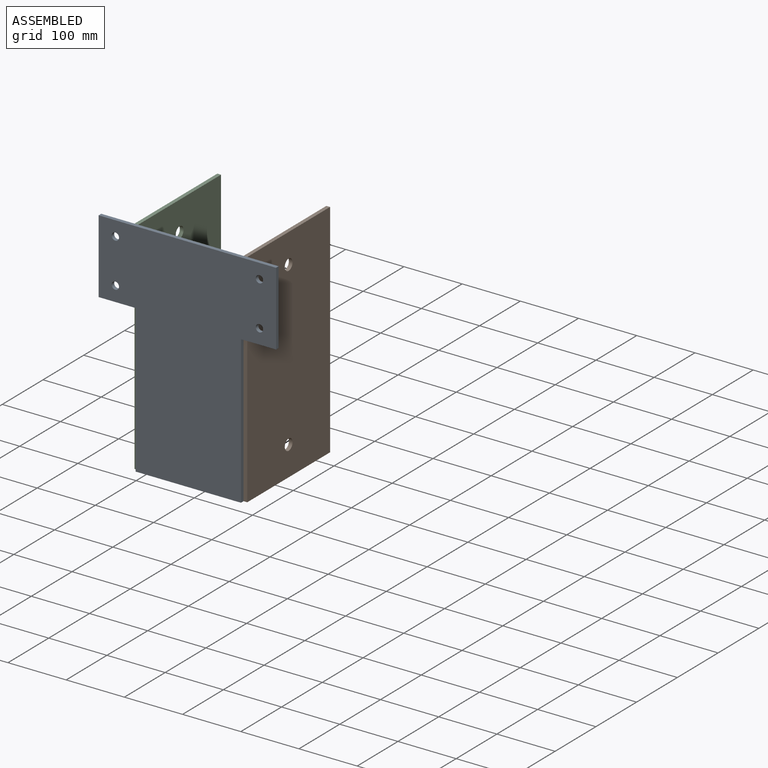
[diagram: assembled view]
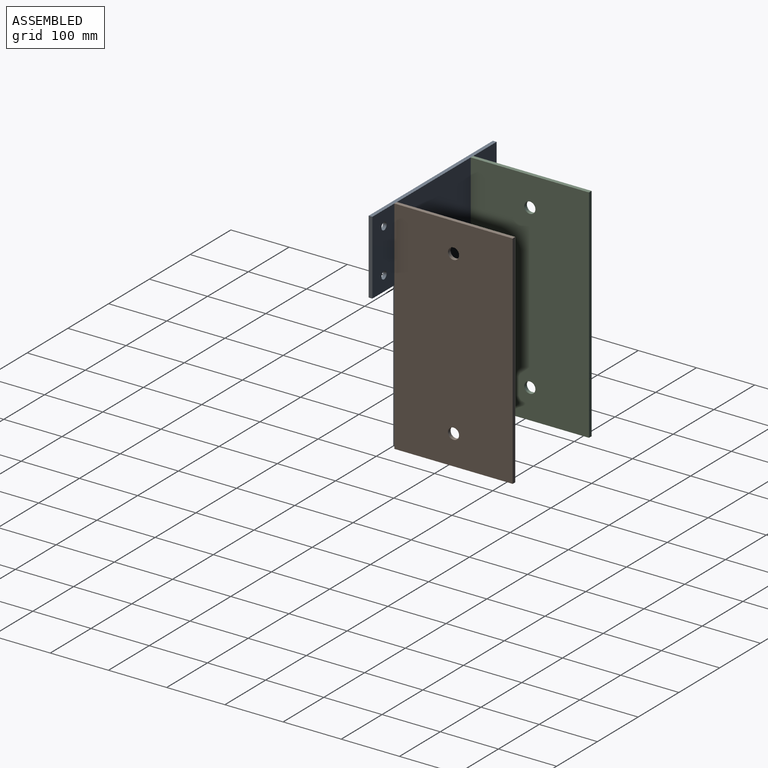
[diagram: assembled view, second angle]
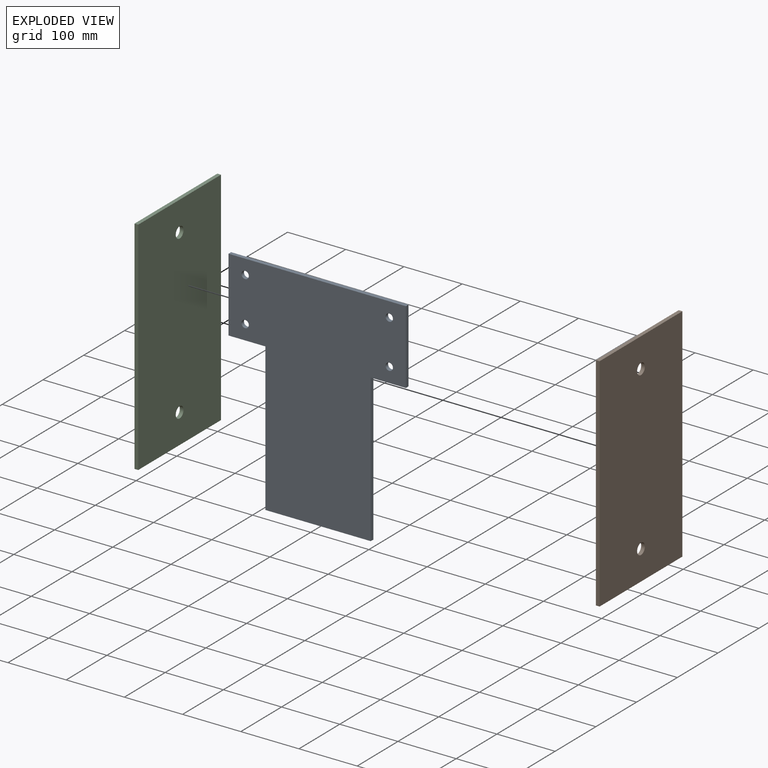
[diagram: exploded view]
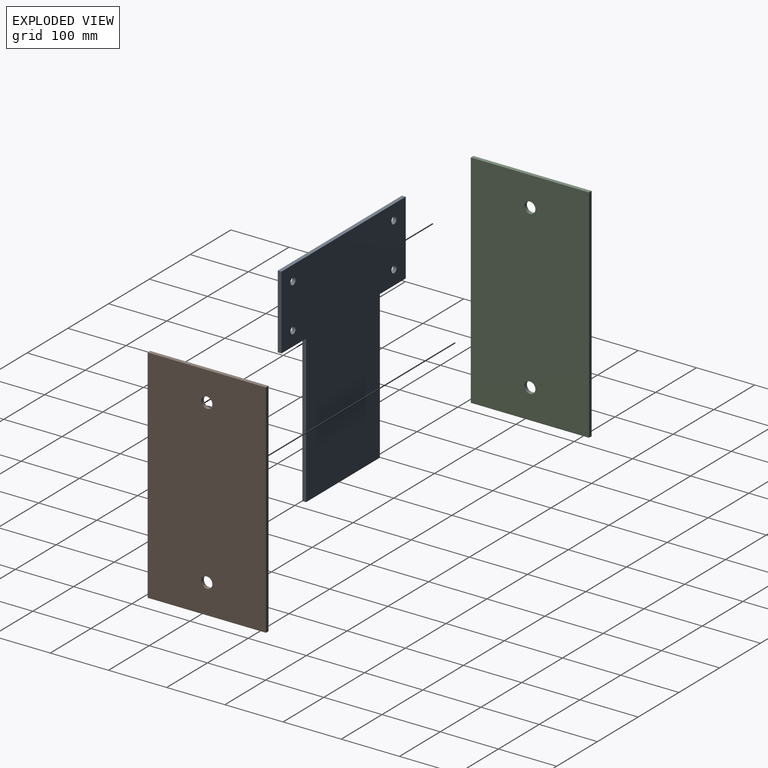
[diagram: exploded view, second angle]
ASSEMBLY  parts=3 mates=6
PART A: 14 faces, bbox 304.8x6.4x381 mm
  f0: plane 304.8x6.35mm, normal (0,0,1), area 1935.5mm2, adj f1,f7,f8,f9
  f1: plane 127x6.35mm, normal (-1,0,0), area 806.5mm2, adj f0,f2,f8,f9
  f2: plane 63.5x6.35mm, normal (0,0,-1), area 403.2mm2, adj f1,f3,f8,f9
  f3: plane 254x6.35mm, normal (-1,0,0), area 1612.9mm2, adj f2,f4,f8,f9
  f4: plane 180.98x6.35mm, normal (0,0,-1), area 1149.2mm2, adj f3,f5,f8,f9
  f5: plane 254x6.35mm, normal (1,0,0), area 1612.9mm2, adj f4,f6,f8,f9
  f6: plane 60.33x6.35mm, normal (0,0,-1), area 383.1mm2, adj f5,f7,f8,f9
  f7: plane 127x6.35mm, normal (1,0,0), area 806.5mm2, adj f0,f6,f8,f9
  f8: plane 381x304.8mm, normal (0,-1,0), area 84170.5mm2, adj f0,f1,f2,f3,f4,f5,f6,f7
  f9: plane 381x304.8mm, normal (0,1,0), area 84170.5mm2, adj f0,f1,f2,f3,f4,f5,f6,f7
  f10: cylinder r=6.35mm len=12.7mm, axis (0,-1,0), area 253.4mm2, adj f8,f9
  f11: cylinder r=6.35mm len=12.7mm, axis (0,-1,0), area 253.4mm2, adj f8,f9
  f12: cylinder r=6.35mm len=12.7mm, axis (0,-1,0), area 253.4mm2, adj f8,f9
  f13: cylinder r=6.35mm len=12.7mm, axis (0,-1,0), area 253.4mm2, adj f8,f9
PART B: 8 faces, bbox 381x6.4x203.2 mm
  f0: plane 381x6.35mm, normal (0,0,1), area 2419.3mm2, adj f1,f3,f4,f5
  f1: plane 203.2x6.35mm, normal (-1,0,0), area 1290.3mm2, adj f0,f2,f4,f5
  f2: plane 381x6.35mm, normal (0,0,-1), area 2419.3mm2, adj f1,f3,f4,f5
  f3: plane 203.2x6.35mm, normal (1,0,0), area 1290.3mm2, adj f0,f2,f4,f5
  f4: plane 381x203.2mm, normal (0,-1,0), area 76849.2mm2, adj f0,f1,f2,f3,f6,f7
  f5: plane 381x203.2mm, normal (0,1,0), area 76849.2mm2, adj f0,f1,f2,f3,f6,f7
  f6: cylinder r=9.53mm len=19.05mm, axis (0,-1,0), area 380mm2, adj f4,f5
  f7: cylinder r=9.53mm len=19.05mm, axis (0,-1,0), area 380mm2, adj f4,f5
PART C: same geometry as B
PLACE A t=(-19.07,-83.33,13.76)mm fixed
PLACE B rot(axis=(0.58,-0.58,0.58),120deg) t=(73,18.27,-113.24)mm
PLACE C rot(axis=(0.58,0.58,-0.58),120deg) t=(-107.97,18.27,-113.24)mm
MATE planar C.f5 <-> A.f3  axis (1,0,0) through (-107.97,18.27,-113.24)mm
MATE planar C.f1 <-> A.f0  axis (0,0,1) through (-111.15,18.27,77.26)mm
MATE planar B.f5 <-> A.f5  axis (-1,0,0) through (73,18.27,-113.24)mm
MATE planar C.f0 <-> A.f9  axis (0,-1,0) through (-111.15,-83.33,-113.24)mm
MATE planar B.f3 <-> A.f0  axis (0,0,1) through (76.18,18.27,77.26)mm
MATE planar B.f0 <-> A.f9  axis (0,-1,0) through (76.18,-83.33,-113.24)mm
